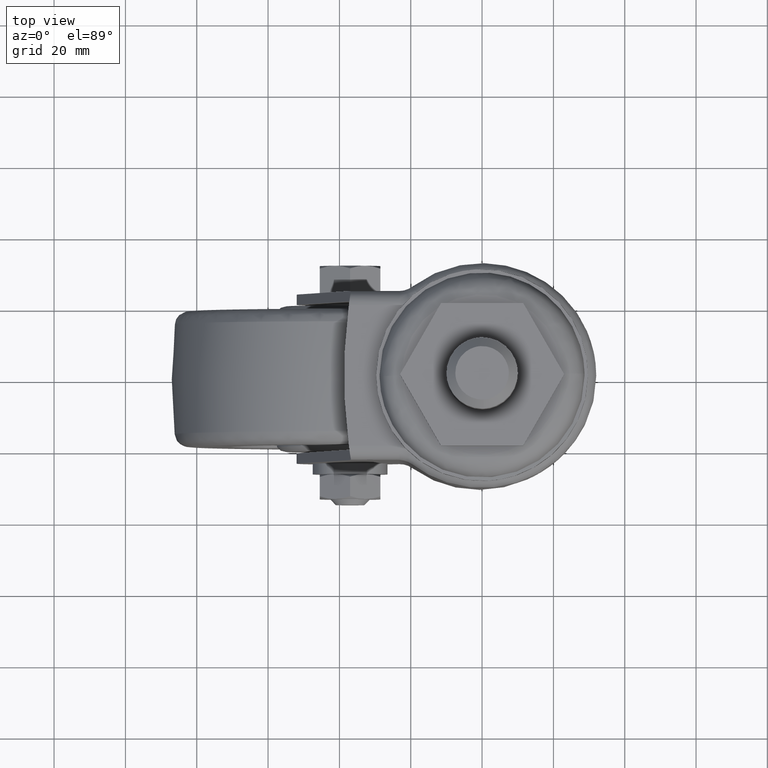
[diagram: clean part render]
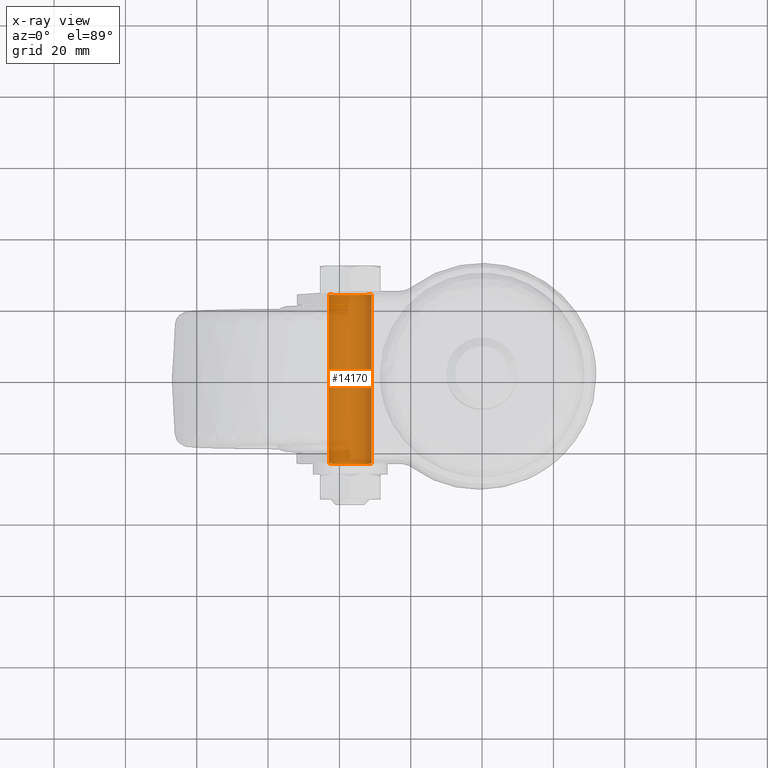
[diagram: x-ray — body ghosted, one internal face saturated and labeled with its STEP entity id]
A machine part, top view, then the same camera in x-ray: the body is ghosted and one INTERNAL B-rep face — a face not visible from any outside direction — is saturated and labeled: STEP entity #14170.
In plain terms, the highlighted face is a freeform B-spline surface patch.
Its self-contained STEP definition (entity closure, byte-faithful):
#14037=CARTESIAN_POINT('',(-37.0,-23.699999999999999,-79.500000000000000));
#14038=VERTEX_POINT('',#14037);
#14039=CARTESIAN_POINT('',(-42.988808790507662,-23.699999999999999,-73.866291237594055));
#14040=VERTEX_POINT('',#14039);
#14041=CARTESIAN_POINT('',(-37.0,-23.699999999999999,-79.500000000000000));
#14042=CARTESIAN_POINT('',(-42.644236401070721,-23.700000000000006,-79.500000000000014));
#14043=CARTESIAN_POINT('',(-42.988808790507655,-23.700000000000003,-73.866291237594041));
#14051=(BOUNDED_CURVE()B_SPLINE_CURVE(2,(#14041,#14042,#14043),.UNSPECIFIED.,.F.,.U.)B_SPLINE_CURVE_WITH_KNOTS((3,3),(0.500000000000000,0.739332962230878),.UNSPECIFIED.)CURVE()GEOMETRIC_REPRESENTATION_ITEM()RATIONAL_B_SPLINE_CURVE((1.0,0.719603993296158,0.976072041649434))REPRESENTATION_ITEM(''));
#14052=EDGE_CURVE('',#14038,#14040,#14051,.T.);
#14054=CARTESIAN_POINT('',(-31.011191209492338,-23.699999999999999,-73.133708762405945));
#14055=VERTEX_POINT('',#14054);
#14056=CARTESIAN_POINT('',(-31.011191209492342,-23.699999999999992,-73.133708762405959));
#14057=CARTESIAN_POINT('',(-31.000000000000004,-23.699999999999999,-73.316683420015480));
#14058=CARTESIAN_POINT('',(-31.0,-23.699999999999999,-73.500000000000000));
#14059=CARTESIAN_POINT('',(-31.000000000000007,-23.700000000000003,-79.500000000000014));
#14060=CARTESIAN_POINT('',(-37.0,-23.699999999999999,-79.500000000000000));
#14068=(BOUNDED_CURVE()B_SPLINE_CURVE(2,(#14056,#14057,#14058,#14059,#14060),.UNSPECIFIED.,.F.,.U.)B_SPLINE_CURVE_WITH_KNOTS((3,2,3),(0.239332962230879,0.250000000000000,0.500000000000000),.UNSPECIFIED.)CURVE()GEOMETRIC_REPRESENTATION_ITEM()RATIONAL_B_SPLINE_CURVE((0.976072041649434,0.987502787890389,1.0,0.707106781186548,1.0))REPRESENTATION_ITEM(''));
#14069=EDGE_CURVE('',#14055,#14038,#14068,.T.);
#14104=CARTESIAN_POINT('',(-31.011191209468802,-24.885000000000009,-73.133708762790860));
#14105=CARTESIAN_POINT('',(-30.644899972259662,-24.885000000000005,-79.122517553322055));
#14106=CARTESIAN_POINT('',(-36.633708762790860,-24.885000000000009,-79.488808790531195));
#14107=CARTESIAN_POINT('',(-42.622517553322069,-24.885000000000005,-79.855100027740335));
#14108=CARTESIAN_POINT('',(-42.988808790531202,-24.885000000000009,-73.866291237209140));
#14109=CARTESIAN_POINT('',(-31.011191209468802,24.914625000000012,-73.133708762790860));
#14110=CARTESIAN_POINT('',(-30.644899972259662,24.914625000000004,-79.122517553322055));
#14111=CARTESIAN_POINT('',(-36.633708762790860,24.914625000000012,-79.488808790531195));
#14112=CARTESIAN_POINT('',(-42.622517553322069,24.914625000000004,-79.855100027740335));
#14113=CARTESIAN_POINT('',(-42.988808790531202,24.914625000000012,-73.866291237209140));
#14121=(BOUNDED_SURFACE()B_SPLINE_SURFACE(2,1,((#14104,#14109),(#14105,#14110),(#14106,#14111),(#14107,#14112),(#14108,#14113)),.UNSPECIFIED.,.F.,.F.,.U.)B_SPLINE_SURFACE_WITH_KNOTS((3,2,3),(2,2),(0.0,9.941125496954268,19.882250993908539),(0.0,49.799625000000027),.UNSPECIFIED.)GEOMETRIC_REPRESENTATION_ITEM()RATIONAL_B_SPLINE_SURFACE(((1.0,1.0),(0.707106781186548,0.707106781186548),(1.0,1.0),(0.707106781186548,0.707106781186548),(1.0,1.0)))REPRESENTATION_ITEM('')SURFACE());
#14122=ORIENTED_EDGE('',*,*,#14069,.T.);
#14123=ORIENTED_EDGE('',*,*,#14052,.T.);
#14124=CARTESIAN_POINT('',(-42.988808790507662,23.699999999999999,-73.866291237594055));
#14125=VERTEX_POINT('',#14124);
#14126=CARTESIAN_POINT('',(-42.988808790507662,-23.699999999999999,-73.866291237594055));
#14127=CARTESIAN_POINT('',(-42.988808790507662,23.699999999999999,-73.866291237594055));
#14128=QUASI_UNIFORM_CURVE('',1,(#14126,#14127),.UNSPECIFIED.,.F.,.U.);
#14129=EDGE_CURVE('',#14040,#14125,#14128,.T.);
#14130=ORIENTED_EDGE('',*,*,#14129,.T.);
#14131=CARTESIAN_POINT('',(-37.0,23.699999999999999,-79.500000000000000));
#14132=VERTEX_POINT('',#14131);
#14133=CARTESIAN_POINT('',(-37.0,23.699999999999999,-79.500000000000000));
#14134=CARTESIAN_POINT('',(-42.644236401070721,23.700000000000006,-79.500000000000014));
#14135=CARTESIAN_POINT('',(-42.988808790507655,23.700000000000003,-73.866291237594041));
#14143=(BOUNDED_CURVE()B_SPLINE_CURVE(2,(#14133,#14134,#14135),.UNSPECIFIED.,.F.,.U.)B_SPLINE_CURVE_WITH_KNOTS((3,3),(0.500000000000000,0.739332962230878),.UNSPECIFIED.)CURVE()GEOMETRIC_REPRESENTATION_ITEM()RATIONAL_B_SPLINE_CURVE((1.0,0.719603993296158,0.976072041649434))REPRESENTATION_ITEM(''));
#14144=EDGE_CURVE('',#14132,#14125,#14143,.T.);
#14145=ORIENTED_EDGE('',*,*,#14144,.F.);
#14146=CARTESIAN_POINT('',(-31.011191209492338,23.699999999999999,-73.133708762405945));
#14147=VERTEX_POINT('',#14146);
#14148=CARTESIAN_POINT('',(-31.011191209492353,23.700000000000003,-73.133708762405959));
#14149=CARTESIAN_POINT('',(-31.000000000000004,23.700000000000003,-73.316683420015480));
#14150=CARTESIAN_POINT('',(-31.0,23.699999999999999,-73.500000000000000));
#14151=CARTESIAN_POINT('',(-31.000000000000007,23.700000000000003,-79.500000000000014));
#14152=CARTESIAN_POINT('',(-37.0,23.699999999999999,-79.500000000000000));
#14160=(BOUNDED_CURVE()B_SPLINE_CURVE(2,(#14148,#14149,#14150,#14151,#14152),.UNSPECIFIED.,.F.,.U.)B_SPLINE_CURVE_WITH_KNOTS((3,2,3),(0.239332962230878,0.250000000000000,0.500000000000000),.UNSPECIFIED.)CURVE()GEOMETRIC_REPRESENTATION_ITEM()RATIONAL_B_SPLINE_CURVE((0.976072041649434,0.987502787890389,1.0,0.707106781186548,1.0))REPRESENTATION_ITEM(''));
#14161=EDGE_CURVE('',#14147,#14132,#14160,.T.);
#14162=ORIENTED_EDGE('',*,*,#14161,.F.);
#14163=CARTESIAN_POINT('',(-31.011191209492338,-23.699999999999999,-73.133708762405945));
#14164=CARTESIAN_POINT('',(-31.011191209492338,23.699999999999999,-73.133708762405945));
#14165=QUASI_UNIFORM_CURVE('',1,(#14163,#14164),.UNSPECIFIED.,.F.,.U.);
#14166=EDGE_CURVE('',#14055,#14147,#14165,.T.);
#14167=ORIENTED_EDGE('',*,*,#14166,.F.);
#14168=EDGE_LOOP('',(#14122,#14123,#14130,#14145,#14162,#14167));
#14169=FACE_OUTER_BOUND('',#14168,.T.);
#14170=ADVANCED_FACE('',(#14169),#14121,.T.);